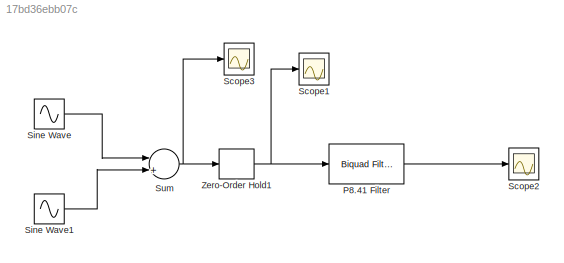
MODEL slx_17bd36ebb07c
KIND model
CONFIG InitFcn = Fs = 100;\nTs = 1/Fs;\n
BLOCK [Reference] P8.41 Filter  REF=dsparch4/Biquad Filter
  BiQuadCoeffs = [1 0.030615271301069648 1 1 -0.40554269106751673 0.80989535401212154;1 0.28571428571428514 1 1 -0.22803648852816497 0.50303483764339085;1 0.83050395098945462 1 1 -0.012988613264674738 0.25706873416682885;1 1.5810918329858568 1 1 0.17262553505918118 0.081385259503934368;1 1 0 1 0.1238769766736436 0]
  CoeffSource = Specify via dialog
  FilterSource = Specify via dialog
  IC = 0
  ICden = 0
  ICnum = 0
  IIRFiltStruct = Direct form II
  InputProcessing = Columns as channels (frame based)
  LockScale = off
  Ports = [1, 1]
  ScaleValueMode = Specify via input port (g)
  ScaleValues = [0.69158972789798756;0.55781177773791146;0.43952601460501861;0.35017554786288219;0.56193848833682181;1]
  SourceBlock = dsparch4/Biquad Filter
  SourceType = Biquad Filter
  Tag = BlockMethodSubSystem
  UserDataPersistent = on
  a0Flag = Warning
  accumFracLength = 30
  accumMode = Same as product output
  accumWordLength = 32
  allowOverrides = on
  denAccumFracLength = 30
  denProdOutputFracLength = 30
  dfiltObjectName = dfilt.df2tsos([1 0.3 0.4],[1 0.1 0.2])
  firstCoeffFracLength = 15
  firstCoeffMode = Same word length as input
  firstCoeffWordLength = 16
  memoryFracLength = 15
  memoryMode = Same as accumulator
  memoryWordLength = 16
  multiplicandFracLength = 30
  multiplicandMode = Same as output
  multiplicandWordLength = 32
  optimizeScaleValues = on
  outputFracLength = 15
  outputMode = Same as accumulator
  outputWordLength = 16
  overflowMode = off
  prodOutputFracLength = 30
  prodOutputMode = Same as input
  prodOutputWordLength = 32
  roundingMode = Floor
  scaleValueFracLength = 14
  secondCoeffFracLength = 15
  secondCoeffMode = Same as numerator
  secondCoeffWordLength = 16
  secondMemoryFracLength = 15
  stageInputFracLength = 15
  stageInputMode = Same as input
  stageInputWordLength = 16
  stageOutputFracLength = 15
  stageOutputMode = Same as section input
  stageOutputWordLength = 16
BLOCK [Scope] Scope1
  DataFormat = StructureWithTime
  Floating = off
  NumInputPorts = 1
  Ports = [1]
  SampleTime = 0
  SaveName = ScopeData1
  ShowLegends = off
  TimeRange = 0.09052471482889736
  YMax = 1.15625
  YMin = -0.90625
BLOCK [Scope] Scope2
  DataFormat = StructureWithTime
  Floating = off
  NumInputPorts = 1
  Ports = [1]
  SampleTime = 0
  ShowLegends = off
  TimeRange = 0.09052471482889736
  YMax = 1.15625
  YMin = -0.90625
BLOCK [Scope] Scope3
  DataFormat = StructureWithTime
  Floating = off
  NumInputPorts = 1
  Ports = [1]
  SampleTime = 0
  SaveName = ScopeData2
  ShowLegends = off
  TimeRange = 0.09052471482889736
  YMax = 1.15625
  YMin = -0.90625
BLOCK [Sin] Sine Wave
  Amplitude = 3
  Frequency = 40*pi
  Ports = [0, 1]
  SampleTime = 0
BLOCK [Sin] Sine Wave1
  Amplitude = 3
  Frequency = 50*pi
  Phase = pi/2
  Ports = [0, 1]
  SampleTime = 0
BLOCK [Sum] Sum
  InputSameDT = off
  Inputs = |++|
  OutDataTypeStr = Inherit: Inherit via internal rule
  Ports = [2, 1]
  SaturateOnIntegerOverflow = off
BLOCK [ZeroOrderHold] Zero-Order Hold1
  SampleTime = Ts
LINE P8.41 Filter:1 -> Scope2:1
LINE Sine Wave1:1 -> Sum:2
LINE Sine Wave:1 -> Sum:1
NET Sum:1 -> Scope3:1, Zero-Order Hold1:1
NET Zero-Order Hold1:1 -> P8.41 Filter:1, Scope1:1
note: NET lines group one-source signal fan-out (src -> all destinations, sorted); 1:1 wires keep LINE
